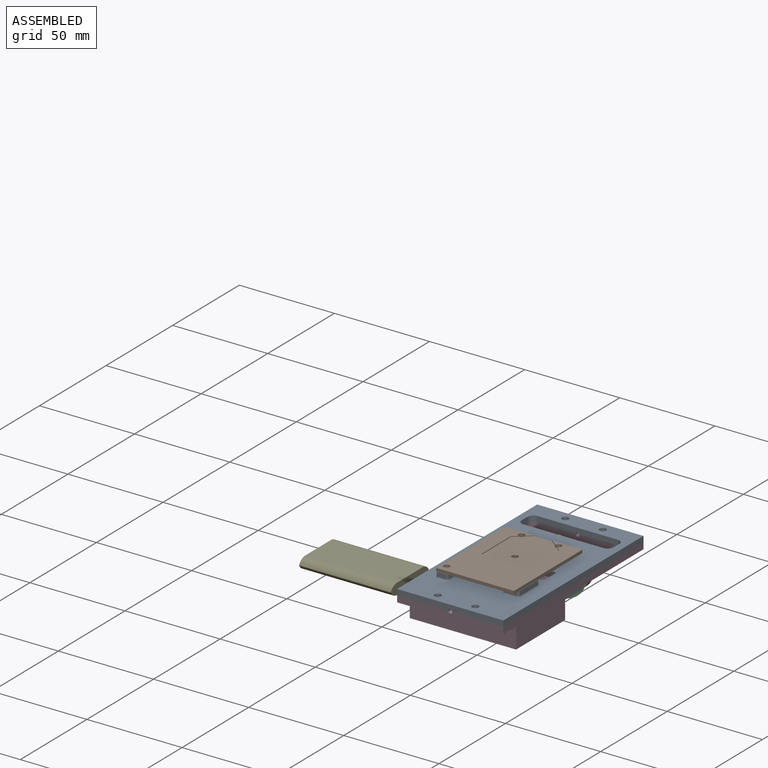
[diagram: assembled view]
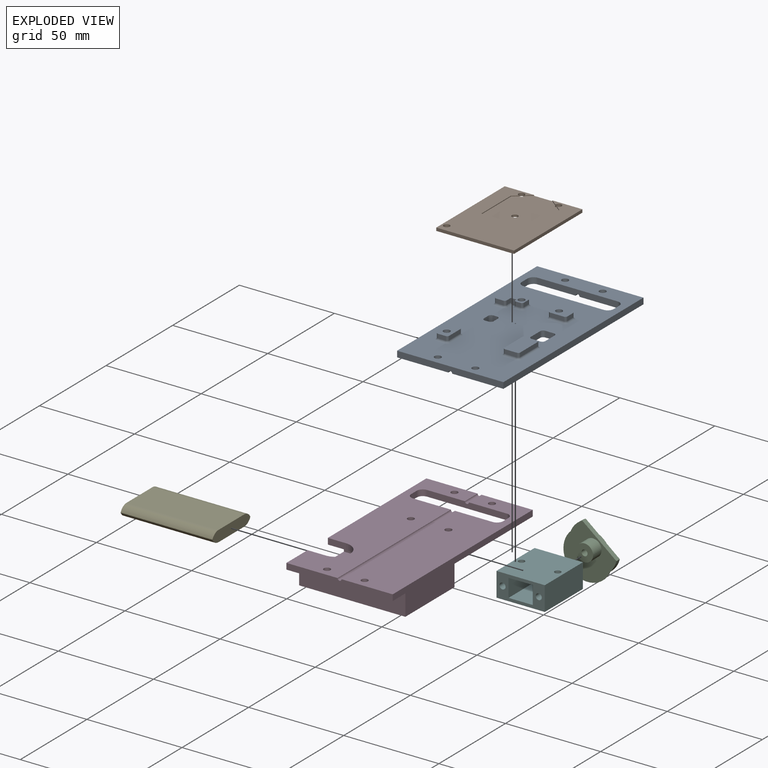
[diagram: exploded view]
GUIDED TOUR — MATED ASSEMBLY (Onshape document 56e84d0ae4b04bbcf82c88f1, AutoMate assembly 56e84d0ae4b04bbcf82c88f1_4766b9ff9a62481ba46b3844_0bbf40eec02bc8a15be4df6e_default)

This assembly has 6 components, labeled P0..P5 below (a component is one placed occurrence of a part; the same part can appear more than once), held together by 6 mates. A mate is a constraint between two components; its type names the relative motion it leaves free:
  CYLINDRICAL — leaves both rotation about and translation along the listed axis free,
  PLANAR — leaves sliding in the plane through the listed point (normal = the listed direction) and rotation about that normal free.
Axis/direction vectors are unit vectors and 'through' points are millimeter coordinates, both in the assembly's world frame.

MATES
  1. CYLINDRICAL "Cylindrical 2": P3 <-> P5, axis (0.000, 0.000, -1.000) through (-40.65, -29.87, 24.01) mm
  2. CYLINDRICAL "Cylindrical 5": P0 <-> P1, axis (0.000, 0.000, -1.000) through (-40.65, -29.87, 30.36) mm
  3. PLANAR "Planar 6": P2 <-> P5, direction (0.000, -1.000, 0.000) through (-31.14, -15.58, 16.19) mm
  4. PLANAR "Planar 1": P0 <-> P3, direction (0.000, 0.000, -1.000) through (-40.65, -29.87, 27.18) mm
  5. CYLINDRICAL "Cylindrical 7": P5 <-> P2, axis (0.000, -1.000, 0.000) through (-31.14, -16.37, 16.19) mm
  6. CYLINDRICAL "Cylindrical 1": P3 <-> P0, axis (0.000, 0.000, -1.000) through (-20.91, -29.87, 24.01) mm

ASSEMBLY ORDER
  1. P5 — the base component [order verified]
  2. P2 [order verified]
  3. P3 [order verified]
  4. P0 [order verified]
  5. P4 [order verified]
  6. P1 [order verified]
Order-tag legend:
  [order verified] — this step's position reverses a verified removal order: the component was checked to insert without passing through the ones already placed.

Of the 6 components, 5 carry the full construction recipe — the FeatureScript program that regenerates the part's solid from scratch; the rest are supplied as boundary geometry only.
Each toured component is shown spotlighted twice — in the assembled view, then in the exploded view, where a leader line traces a displaced component back to its assembled socket (saturated green if recipe-attached, orange if geometry-only; every other component desaturated gray) — followed by its recipe or geometry summary and the mates that hold it.
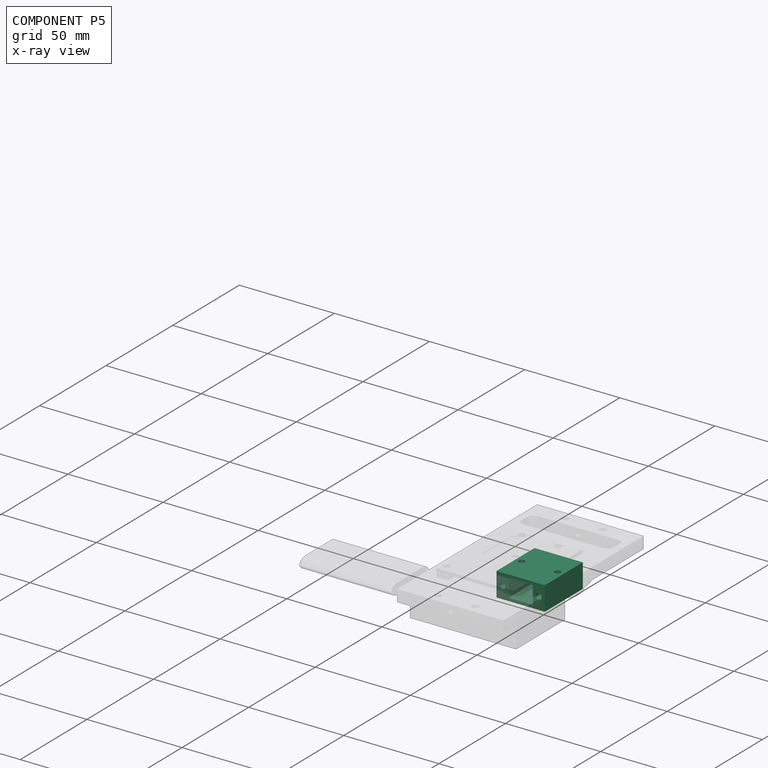
[diagram: component P5 — x-ray view]
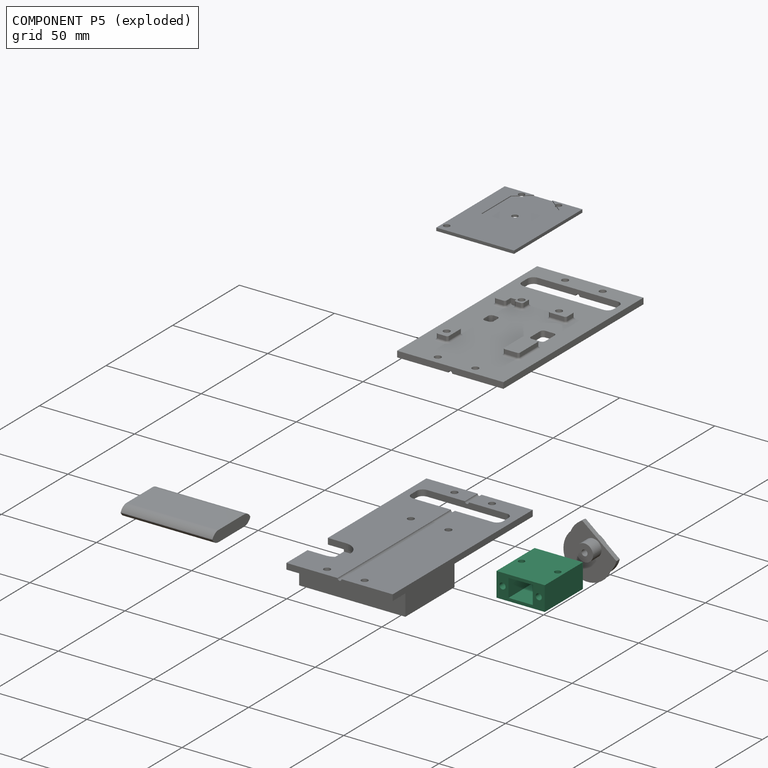
[diagram: component P5 — exploded]
COMPONENT P5 — recipe-attached (CADFS 00110618, mesh-verified: the recipe's output STEP matches this component's geometry to below the mesh-comparison resolution (tessellation chordal tolerance ~0.0604 mm)).
Held by: CYLINDRICAL mate "Cylindrical 2" to P3; PLANAR mate "Planar 6" to P2; CYLINDRICAL mate "Cylindrical 7" to P2.
Construction recipe (FeatureScript — the CAD program that rebuilds this solid; sketch coordinates are in the units given by the * unit suffixes, e.g. mm):

FeatureScript 1511;
import(path : "onshape/std/geometry.fs", version : "1511.0");
import(path : "onshape/std/common.fs", version : "1511.0");
const mm = millimeter;
const VERTEX = EntityType.VERTEX;
const EDGE = EntityType.EDGE;
const FACE = EntityType.FACE;
const BODY = EntityType.BODY;
function v(x, y){return vector(x, y);}
function OD(order){return orderDisambiguation(order);}
function OSD(set){return originalSetDisambiguation(set);}
function TD(topology){return topologyDisambiguation(topology);}
function TDD(query){return trueDependencyDisambiguation(query);}
function sQuery(a, b, c) {return sketchEntityQuery(a, b, c);}

annotation { "Feature Type Name" : "Feature", "Feature Type Description" : "" }
export const myFeature = defineFeature(function(context is Context, id is Id, definition is map)
    precondition{}
    {
        {
            var Q0;
            Q0=qCreatedBy(makeId("Top.planeOp"),FACE);
            var sketch = newSketch(context, id + "F0", { "sketchPlane" : qUnion([Q0])});
            skLineSegment(sketch, "E0.rect.bottom", {"start": v(12.7, 14.29) * mm, "end": v(-12.7, 14.29) * mm});
            skLineSegment(sketch, "E0.rect.top", {"start": v(12.7, -14.29) * mm, "end": v(-12.7, -14.29) * mm});
            skLineSegment(sketch, "E0.rect.left", {"start": v(12.7, 14.29) * mm, "end": v(12.7, -14.29) * mm});
            skLineSegment(sketch, "E0.rect.right", {"start": v(-12.7, 14.29) * mm, "end": v(-12.7, -14.29) * mm});
            skPoint(sketch, "E0.rect.middle", {"position": v(0, 0) * mm});
            skCircle(sketch, "E1", {"center": v(-9.51, 0) * mm, "radius": 1.59 * mm});
            skCircle(sketch, "E2", {"center": v(9.51, 0) * mm, "radius": 1.59 * mm});
            skSolve(sketch);
        }
        {
            var Q0;
            Q0=qSketchRegion(id+"F0",true);
            extrude(context, id + "F1", {"entities" : qUnion([Q0]), "depth" : 12.7 * mm});
        }
        {
            var Q0;
            Q0=makeQuery(id+"F1.opExtrude","SWEPT_FACE",FACE,{"disambiguationData":[OSD([sQuery(id+"F0.wireOp",EDGE,"E0.rect.bottom")])]});
            var sketch = newSketch(context, id + "F2", { "sketchPlane" : qUnion([Q0])});
            skLineSegment(sketch, "E3.rect.bottom", {"start": v(6.35, 11.1) * mm, "end": v(-6.35, 11.1) * mm});
            skLineSegment(sketch, "E3.rect.top", {"start": v(6.35, 1.6) * mm, "end": v(-6.35, 1.6) * mm});
            skLineSegment(sketch, "E3.rect.left", {"start": v(6.35, 11.1) * mm, "end": v(6.35, 1.6) * mm});
            skLineSegment(sketch, "E3.rect.right", {"start": v(-6.35, 11.1) * mm, "end": v(-6.35, 1.6) * mm});
            skPoint(sketch, "E3.rect.middle", {"position": v(0, 6.35) * mm});
            skSolve(sketch);
        }
        {
            var Q0;
            Q0=qSketchRegion(id+"F2",true);
            extrude(context, id + "F3", {"entities" : qUnion([Q0]), "operationType" : NewBodyOperationType.REMOVE, "oppositeDirection" : true, "depth" : 27 * mm});
        }
        {
            var Q0;
            Q0=makeQuery(id+"F3.boolean.opBoolean","COPY",FACE,{"derivedFrom":makeQuery(id+"F3.opExtrude","CAP_FACE",FACE,{"disambiguationData":[OSD([sQuery(id+"F2.wireOp",EDGE,"E3.rect.bottom"),sQuery(id+"F2.wireOp",EDGE,"E3.rect.top"),sQuery(id+"F2.wireOp",EDGE,"E3.rect.left"),sQuery(id+"F2.wireOp",EDGE,"E3.rect.right")])],"isStart":false})});
            var sketch = newSketch(context, id + "F4", { "sketchPlane" : qUnion([Q0])});
            skCircle(sketch, "E4", {"center": v(0, 6.35) * mm, "radius": 2.38 * mm});
            skPoint(sketch, "E5", {"position": v(6.35, 6.35) * mm});
            skSolve(sketch);
        }
        {
            var Q0;
            Q0=qSketchRegion(id+"F4",true);
            extrude(context, id + "F5", {"entities" : qUnion([Q0]), "operationType" : NewBodyOperationType.REMOVE, "endBound" : BoundingType.THROUGH_ALL, "oppositeDirection" : true, "depth" : 25.4 * mm});
        }
        {
            var Q0;
            Q0=makeQuery(id+"F1.opExtrude","SWEPT_FACE",FACE,{"disambiguationData":[OSD([sQuery(id+"F0.wireOp",EDGE,"E0.rect.top")])]});
            var sketch = newSketch(context, id + "F6", { "sketchPlane" : qUnion([Q0])});
            skPoint(sketch, "E6", {"position": v(0, 6.35) * mm});
            skCircle(sketch, "E7", {"center": v(-9.51, 6.35) * mm, "radius": 1.59 * mm});
            skCircle(sketch, "E8", {"center": v(9.51, 6.35) * mm, "radius": 1.59 * mm});
            skSolve(sketch);
        }
        {
            var Q0;
            Q0=qSketchRegion(id+"F6",true);
            extrude(context, id + "F7", {"entities" : qUnion([Q0]), "operationType" : NewBodyOperationType.REMOVE, "oppositeDirection" : true, "depth" : 11.43 * mm});
        }
        {
            var Q0;
            Q0=makeQuery(id+"F1.opExtrude","SWEPT_FACE",FACE,{"disambiguationData":[OSD([sQuery(id+"F0.wireOp",EDGE,"E0.rect.bottom")])]});
            var sketch = newSketch(context, id + "F8", { "sketchPlane" : qUnion([Q0])});
            skCircle(sketch, "E9", {"center": v(-9.51, 6.35) * mm, "radius": 1.59 * mm});
            skPoint(sketch, "E9.centerSnap0", {"position": v(-6.35, 6.35) * mm});
            skCircle(sketch, "E10", {"center": v(9.51, 6.35) * mm, "radius": 1.59 * mm});
            skPoint(sketch, "E10.centerSnap0", {"position": v(6.35, 6.35) * mm});
            skSolve(sketch);
        }
        {
            var Q0;
            Q0=qSketchRegion(id+"F8",true);
            extrude(context, id + "F9", {"entities" : qUnion([Q0]), "operationType" : NewBodyOperationType.REMOVE, "oppositeDirection" : true, "depth" : 11.43 * mm});
        }
    });
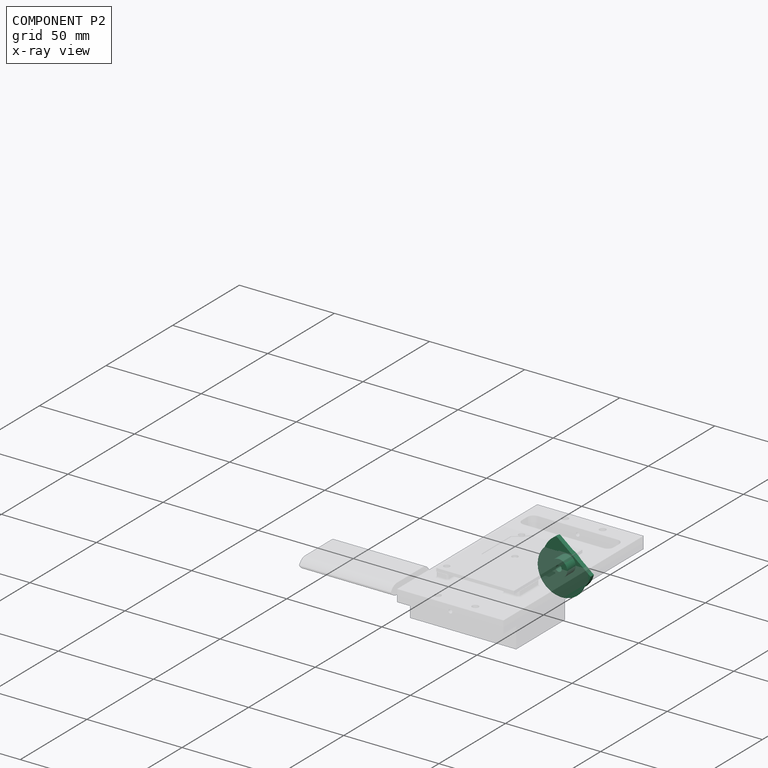
[diagram: component P2 — x-ray view]
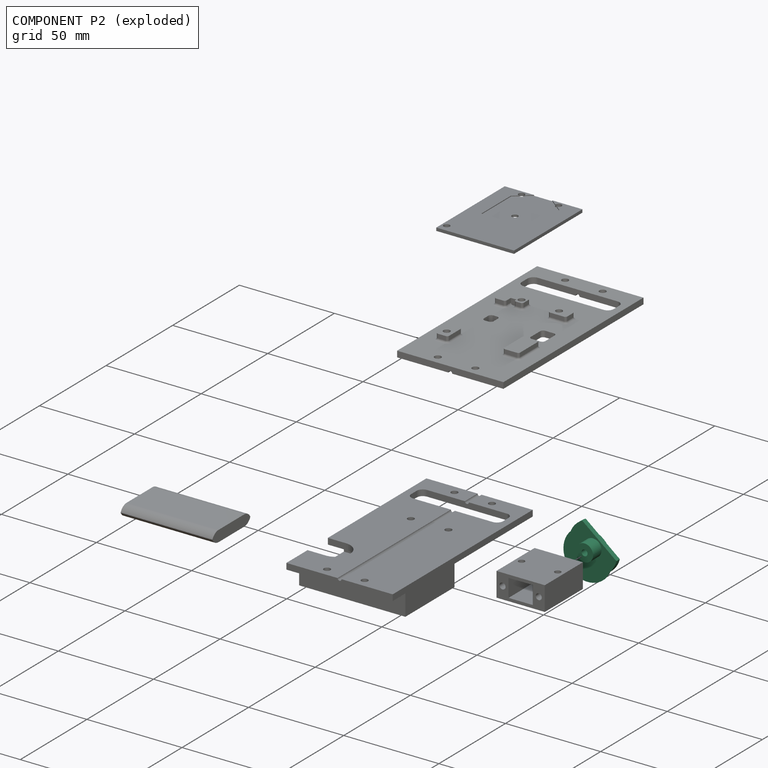
[diagram: component P2 — exploded]
COMPONENT P2 — recipe-attached (CADFS 00110620, mesh-verified: the recipe's output STEP matches this component's geometry to below the mesh-comparison resolution (tessellation chordal tolerance ~0.0646 mm)).
Held by: PLANAR mate "Planar 6" to P5; CYLINDRICAL mate "Cylindrical 7" to P5.
Construction recipe (FeatureScript — the CAD program that rebuilds this solid; sketch coordinates are in the units given by the * unit suffixes, e.g. mm):

FeatureScript 1511;
import(path : "onshape/std/geometry.fs", version : "1511.0");
import(path : "onshape/std/common.fs", version : "1511.0");
const mm = millimeter;
const VERTEX = EntityType.VERTEX;
const EDGE = EntityType.EDGE;
const FACE = EntityType.FACE;
const BODY = EntityType.BODY;
function v(x, y){return vector(x, y);}
function OD(order){return orderDisambiguation(order);}
function OSD(set){return originalSetDisambiguation(set);}
function TD(topology){return topologyDisambiguation(topology);}
function TDD(query){return trueDependencyDisambiguation(query);}
function sQuery(a, b, c) {return sketchEntityQuery(a, b, c);}

annotation { "Feature Type Name" : "Feature", "Feature Type Description" : "" }
export const myFeature = defineFeature(function(context is Context, id is Id, definition is map)
    precondition{}
    {
        {
            var Q0;
            Q0=qCreatedBy(makeId("Top.planeOp"),FACE);
            var sketch = newSketch(context, id + "F0", { "sketchPlane" : qUnion([Q0])});
            skCircle(sketch, "E0", {"center": v(0, 0) * mm, "radius": 4.5 * mm});
            skCircle(sketch, "E1", {"center": v(0, 0) * mm, "radius": 1.59 * mm});
            skSolve(sketch);
        }
        {
            var Q0;
            Q0=qSketchRegion(id+"F0",true);
            extrude(context, id + "F1", {"entities" : qUnion([Q0]), "depth" : 6.35 * mm});
        }
        {
            var Q0;
            Q0=makeQuery(id+"F1.opExtrude","CAP_FACE",FACE,{"disambiguationData":[OSD([sQuery(id+"F0.wireOp",EDGE,"E0")])],"isStart":false});
            var sketch = newSketch(context, id + "F2", { "sketchPlane" : qUnion([Q0])});
            skCircle(sketch, "E2", {"center": v(0, 0) * mm, "radius": 12.7 * mm});
            skSolve(sketch);
        }
        {
            var Q0;
            Q0=qSketchRegion(id+"F2",true);
            extrude(context, id + "F3", {"entities" : qUnion([Q0]), "operationType" : NewBodyOperationType.ADD, "depth" : 2.54 * mm});
        }
        {
            var Q0;
            {var subQ0=sQuery(id+"F2.wireOp",EDGE,"E2");Q0=makeQuery(id+"F3.boolean.opBoolean","SPLIT",FACE,{"disambiguationData":[TD([makeQuery(id+"F1.opExtrude","SWEPT_FACE",FACE,{"disambiguationData":[OSD([sQuery(id+"F0.wireOp",EDGE,"E0")])]})])],"derivedFrom":makeQuery(id+"F3.opExtrude","CAP_FACE",FACE,{"disambiguationData":[OSD([subQ0])],"isStart":true})});}
            var sketch = newSketch(context, id + "F4", { "sketchPlane" : qUnion([Q0])});
            skLineSegment(sketch, "E3", {"start": v(19.32, 15.43) * mm, "end": v(-10.04, -20.93) * mm});
            skLineSegment(sketch, "E4", {"start": v(-10.04, -20.93) * mm, "end": v(21.4, -20.93) * mm});
            skLineSegment(sketch, "E5", {"start": v(21.4, -20.93) * mm, "end": v(19.32, 15.43) * mm});
            skSolve(sketch);
        }
        {
            var Q0;
            Q0=qSketchRegion(id+"F4",true);
            extrude(context, id + "F5", {"entities" : qUnion([Q0]), "operationType" : NewBodyOperationType.REMOVE, "endBound" : BoundingType.THROUGH_ALL, "oppositeDirection" : true, "depth" : 25.4 * mm});
        }
        {
            var Q0;
            Q0=makeQuery(id+"F3.opExtrude","CAP_FACE",FACE,{"disambiguationData":[OSD([sQuery(id+"F2.wireOp",EDGE,"E2")])],"isStart":false});
            var sketch = newSketch(context, id + "F6", { "sketchPlane" : qUnion([Q0])});
            skCircle(sketch, "E6", {"center": v(-5.73, -4.63) * mm, "radius": 12.7 * mm});
            skLineSegment(sketch, "E7", {"start": v(0, 0) * mm, "end": v(-40.87, -33) * mm, "construction": true});
            skSolve(sketch);
        }
        {
            var Q0;
            Q0=qSketchRegion(id+"F6",true);
            extrude(context, id + "F7", {"entities" : qUnion([Q0]), "operationType" : NewBodyOperationType.ADD, "depth" : 0.36 * mm});
        }
    });
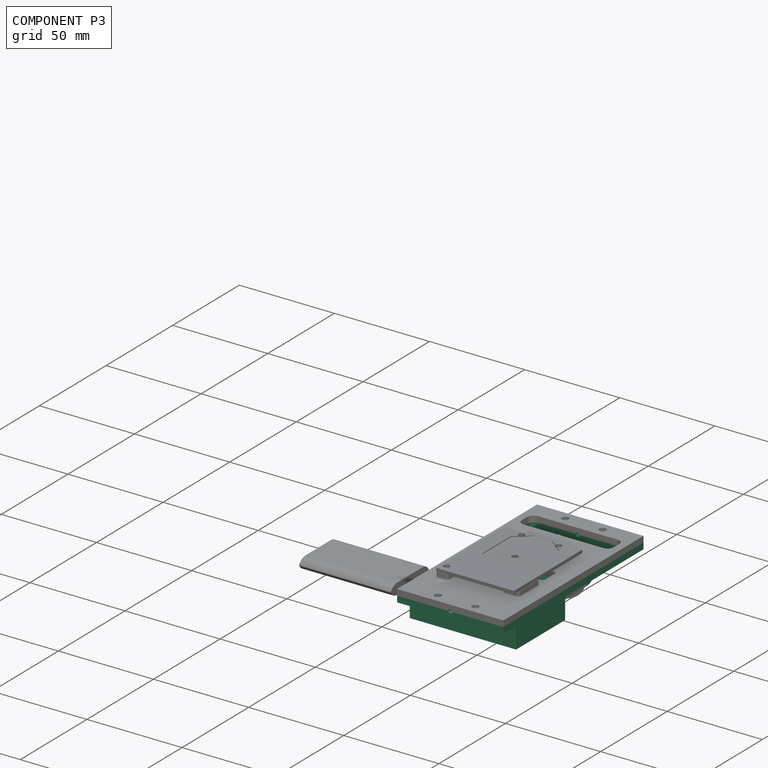
[diagram: component P3 — assembled]
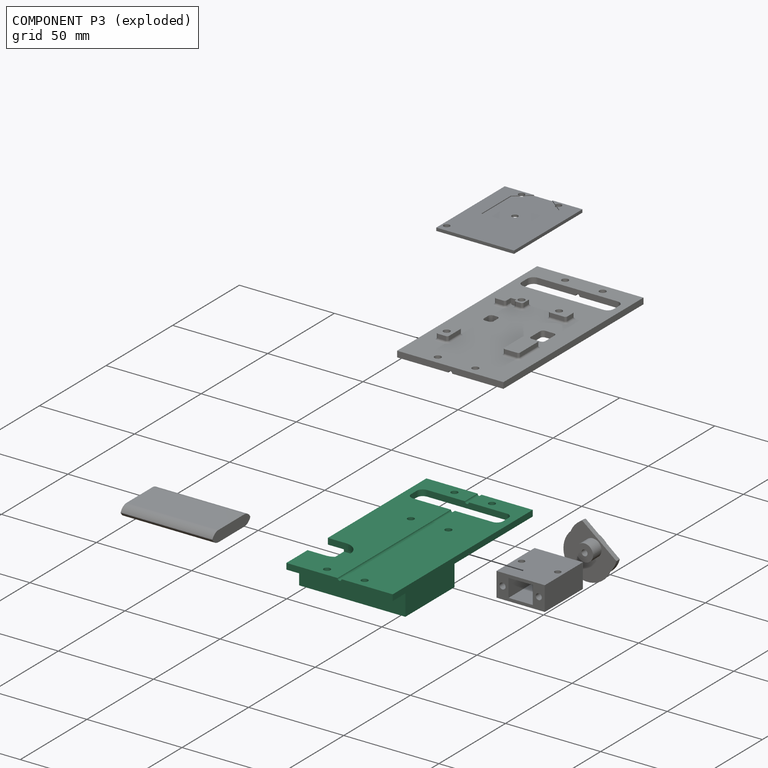
[diagram: component P3 — exploded]
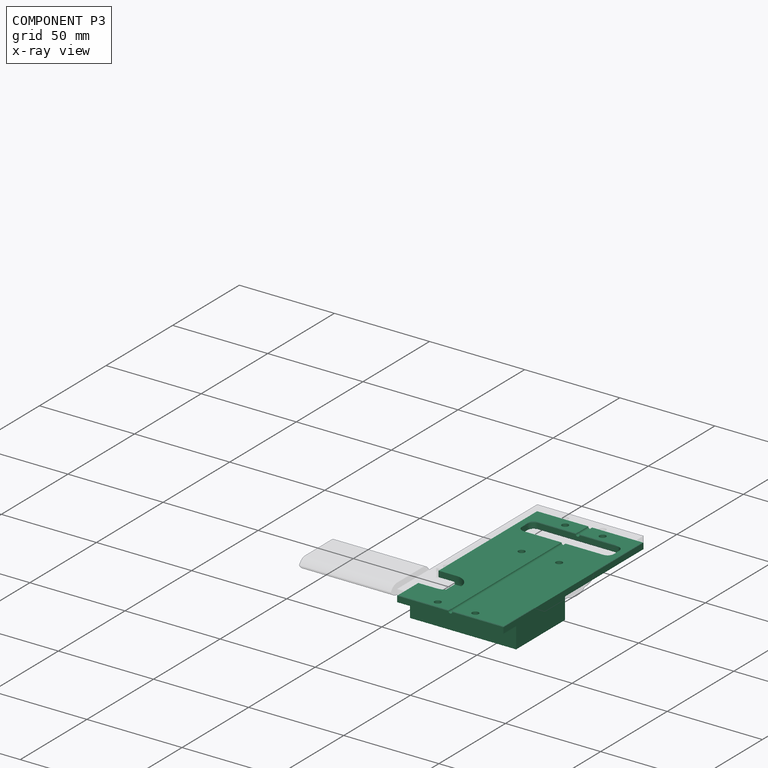
[diagram: component P3 — x-ray view]
COMPONENT P3 — recipe-attached (CADFS 00110623, mesh-verified: the recipe's output STEP matches this component's geometry to below the mesh-comparison resolution (tessellation chordal tolerance ~0.18 mm)).
Held by: CYLINDRICAL mate "Cylindrical 2" to P5; PLANAR mate "Planar 1" to P0; CYLINDRICAL mate "Cylindrical 1" to P0.
Construction recipe (FeatureScript — the CAD program that rebuilds this solid; sketch coordinates are in the units given by the * unit suffixes, e.g. mm):

FeatureScript 1511;
import(path : "onshape/std/geometry.fs", version : "1511.0");
import(path : "onshape/std/common.fs", version : "1511.0");
const mm = millimeter;
const VERTEX = EntityType.VERTEX;
const EDGE = EntityType.EDGE;
const FACE = EntityType.FACE;
const BODY = EntityType.BODY;
function v(x, y){return vector(x, y);}
function OD(order){return orderDisambiguation(order);}
function OSD(set){return originalSetDisambiguation(set);}
function TD(topology){return topologyDisambiguation(topology);}
function TDD(query){return trueDependencyDisambiguation(query);}
function sQuery(a, b, c) {return sketchEntityQuery(a, b, c);}

annotation { "Feature Type Name" : "Feature", "Feature Type Description" : "" }
export const myFeature = defineFeature(function(context is Context, id is Id, definition is map)
    precondition{}
    {
        {
            var Q0;
            Q0=qCreatedBy(makeId("Top.planeOp"),FACE);
            var sketch = newSketch(context, id + "F0", { "sketchPlane" : qUnion([Q0])});
            skLineSegment(sketch, "E0.rect.top", {"start": v(27.94, 0) * mm, "end": v(-27.94, 0) * mm});
            skLineSegment(sketch, "E0.rect.left", {"start": v(27.94, 72.4) * mm, "end": v(27.94, 0) * mm});
            skLineSegment(sketch, "E0.rect.right", {"start": v(-27.94, 72.4) * mm, "end": v(-27.94, 0) * mm});
            skPoint(sketch, "E0.rect.middle", {"position": v(0, 0) * mm});
            skCircle(sketch, "E1", {"center": v(-9.87, 58.09) * mm, "radius": 1.71 * mm});
            skCircle(sketch, "E2", {"center": v(9.87, 58.09) * mm, "radius": 1.71 * mm});
            skLineSegment(sketch, "E3", {"start": v(-12.7, 72.4) * mm, "end": v(12.7, 72.4) * mm, "construction": true});
            skPoint(sketch, "E4", {"position": v(0, 72.4) * mm});
            skLineSegment(sketch, "E5.rect.bottom", {"start": v(24.13, 86.06) * mm, "end": v(-24.13, 86.06) * mm});
            skLineSegment(sketch, "E5.rect.top", {"start": v(24.13, 75.57) * mm, "end": v(-24.13, 75.57) * mm});
            skLineSegment(sketch, "E5.rect.left", {"start": v(24.13, 86.06) * mm, "end": v(24.13, 75.57) * mm});
            skLineSegment(sketch, "E5.rect.right", {"start": v(-24.13, 86.06) * mm, "end": v(-24.13, 75.57) * mm});
            skPoint(sketch, "E5.rect.middle", {"position": v(0, 80.81) * mm});
            skLineSegment(sketch, "E6", {"start": v(-27.94, 72.4) * mm, "end": v(-27.94, 72.4) * mm});
            skLineSegment(sketch, "E7", {"start": v(-27.94, 72.4) * mm, "end": v(-27.94, 95.58) * mm});
            skLineSegment(sketch, "E8", {"start": v(-27.94, 95.58) * mm, "end": v(27.94, 95.58) * mm});
            skLineSegment(sketch, "E9", {"start": v(27.94, 95.58) * mm, "end": v(27.94, 72.4) * mm});
            skLineSegment(sketch, "E10", {"start": v(27.94, 72.4) * mm, "end": v(27.94, 72.4) * mm});
            skPoint(sketch, "E11", {"position": v(0, 95.58) * mm});
            skCircle(sketch, "E12", {"center": v(-9.87, 90.82) * mm, "radius": 1.71 * mm});
            skCircle(sketch, "E13", {"center": v(9.87, 90.82) * mm, "radius": 1.71 * mm});
            skLineSegment(sketch, "E14", {"start": v(0, 86.06) * mm, "end": v(0, 95.58) * mm, "construction": true});
            skPoint(sketch, "E15", {"position": v(0, 90.82) * mm});
            skLineSegment(sketch, "E16", {"start": v(-9.87, 58.09) * mm, "end": v(9.87, 58.09) * mm, "construction": true});
            skPoint(sketch, "E17", {"position": v(0, 58.09) * mm});
            skSolve(sketch);
        }
        {
            var Q0;
            Q0=qSketchRegion(id+"F0",true);
            extrude(context, id + "F1", {"entities" : qUnion([Q0]), "depth" : 3.17 * mm});
        }
        {
            var Q0;
            Q0=makeQuery(id+"F1.opExtrude","CAP_FACE",FACE,{"disambiguationData":[OSD([sQuery(id+"F0.wireOp",EDGE,"E0.rect.bottom"),sQuery(id+"F0.wireOp",EDGE,"E0.rect.top"),sQuery(id+"F0.wireOp",EDGE,"E0.rect.left"),sQuery(id+"F0.wireOp",EDGE,"E0.rect.right")])],"isStart":true});
            var sketch = newSketch(context, id + "F2", { "sketchPlane" : qUnion([Q0])});
            skLineSegment(sketch, "E18.bottom", {"start": v(-27.94, 0) * mm, "end": v(27.94, 0) * mm});
            skLineSegment(sketch, "E18.top", {"start": v(-27.94, -36.83) * mm, "end": v(27.94, -36.83) * mm});
            skLineSegment(sketch, "E18.left", {"start": v(-27.94, 0) * mm, "end": v(-27.94, -36.83) * mm});
            skLineSegment(sketch, "E18.right", {"start": v(27.94, 0) * mm, "end": v(27.94, -36.83) * mm});
            skPoint(sketch, "E19", {"position": v(0, 0) * mm});
            skSolve(sketch);
        }
        {
            var Q0;
            Q0=qSketchRegion(id+"F2",true);
            extrude(context, id + "F3", {"entities" : qUnion([Q0]), "operationType" : NewBodyOperationType.ADD, "depth" : 11.13 * mm});
        }
        {
            var Q0;
            Q0=makeQuery(id+"F3.opExtrude","CAP_FACE",FACE,{"disambiguationData":[OSD([sQuery(id+"F2.wireOp",EDGE,"E18.bottom"),sQuery(id+"F2.wireOp",EDGE,"E18.top"),sQuery(id+"F2.wireOp",EDGE,"E18.left"),sQuery(id+"F2.wireOp",EDGE,"E18.right")])],"isStart":false});
            var sketch = newSketch(context, id + "F4", { "sketchPlane" : qUnion([Q0])});
            skLineSegment(sketch, "E20", {"start": v(-27.94, -21.59) * mm, "end": v(-27.94, -6.35) * mm});
            skLineSegment(sketch, "E21", {"start": v(-27.94, -6.35) * mm, "end": v(-18.42, -6.35) * mm});
            skLineSegment(sketch, "E22", {"start": v(-27.94, -21.59) * mm, "end": v(-18.42, -21.59) * mm});
            skArc(sketch, "E23", {"start": v(-18.42, -21.59) * mm, "mid": v(-10.8, -13.97) * mm, "end": v(-18.42, -6.35) * mm});
            skSolve(sketch);
        }
        {
            var Q0;
            Q0=qSketchRegion(id+"F4",true);
            extrude(context, id + "F5", {"entities" : qUnion([Q0]), "operationType" : NewBodyOperationType.REMOVE, "endBound" : BoundingType.THROUGH_ALL, "oppositeDirection" : true, "depth" : 25.4 * mm});
        }
        {
            var Q0;
            Q0=makeQuery(id+"F3.boolean.opBoolean","MERGE",FACE,{"derivedFrom":[makeQuery(id+"F1.opExtrude","SWEPT_FACE",FACE,{"disambiguationData":[OSD([sQuery(id+"F0.wireOp",EDGE,"E0.rect.top")])]}),makeQuery(id+"F3.opExtrude","SWEPT_FACE",FACE,{"disambiguationData":[OSD([sQuery(id+"F2.wireOp",EDGE,"E18.bottom")])]})]});
            var sketch = newSketch(context, id + "F6", { "sketchPlane" : qUnion([Q0])});
            skLineSegment(sketch, "E24.bottom", {"start": v(-27.94, 3.18) * mm, "end": v(27.94, 3.18) * mm});
            skLineSegment(sketch, "E24.top", {"start": v(-27.94, 0) * mm, "end": v(27.94, 0) * mm});
            skLineSegment(sketch, "E24.left", {"start": v(-27.94, 3.18) * mm, "end": v(-27.94, 0) * mm});
            skLineSegment(sketch, "E24.right", {"start": v(27.94, 3.18) * mm, "end": v(27.94, 0) * mm});
            skSolve(sketch);
        }
        {
            var Q0;
            Q0 = qSketchRegion(id + "F6", true);
            extrude(context, id + "F7", {"entities" : qUnion([Q0]), "operationType" : NewBodyOperationType.ADD, "depth" : 9.52 * mm});
        }
        {
            var Q0;
            Q0=makeQuery(id+"F1.opExtrude","SWEPT_FACE",FACE,{"disambiguationData":[OSD([sQuery(id+"F0.wireOp",EDGE,"E8")])]});
            var sketch = newSketch(context, id + "F8", { "sketchPlane" : qUnion([Q0])});
            skCircle(sketch, "E25", {"center": v(0, 3.18) * mm, "radius": 1.02 * mm});
            skSolve(sketch);
        }
        {
            var Q0;
            Q0=qSketchRegion(id+"F8",true);
            extrude(context, id + "F9", {"entities" : qUnion([Q0]), "operationType" : NewBodyOperationType.REMOVE, "endBound" : BoundingType.THROUGH_ALL, "oppositeDirection" : true, "depth" : 25.4 * mm});
        }
        {
            var Q0;
            {var subQ0=sQuery(id+"F0.wireOp",EDGE,"E8");var subQ4=sQuery(id+"F0.wireOp",EDGE,"E7");var subQ11=sQuery(id+"F0.wireOp",EDGE,"E0.rect.right");var subQ14=sQuery(id+"F2.wireOp",EDGE,"E18.left");Q0=makeQuery(id+"F5.boolean.opBoolean","SPLIT",FACE,{"disambiguationData":[TD([makeQuery(id+"F1.opExtrude","SWEPT_FACE",FACE,{"disambiguationData":[OSD([subQ0])]})])],"derivedFrom":makeQuery(id+"F3.boolean.opBoolean","MERGE",FACE,{"derivedFrom":[makeQuery(id+"F1.opExtrude","SWEPT_FACE",FACE,{"disambiguationData":[OSD([subQ11,subQ4])]}),makeQuery(id+"F3.opExtrude","SWEPT_FACE",FACE,{"disambiguationData":[OSD([subQ14])]})]})});}
            var sketch = newSketch(context, id + "F10", { "sketchPlane" : qUnion([Q0])});
            skLineSegment(sketch, "E26.bottom", {"start": v(-33.66, 0) * mm, "end": v(-3.18, 0) * mm});
            skLineSegment(sketch, "E26.top", {"start": v(-33.66, -7.95) * mm, "end": v(-3.18, -7.95) * mm});
            skLineSegment(sketch, "E26.left", {"start": v(-33.66, 0) * mm, "end": v(-33.66, -7.95) * mm});
            skLineSegment(sketch, "E26.right", {"start": v(-3.18, 0) * mm, "end": v(-3.18, -7.95) * mm});
            skSolve(sketch);
        }
        {
            var Q0;
            Q0=qSketchRegion(id+"F10",true);
            extrude(context, id + "F11", {"entities" : qUnion([Q0]), "operationType" : NewBodyOperationType.REMOVE, "oppositeDirection" : true, "depth" : 52.07 * mm});
        }
        {
            var Q0;
            Q0=makeQuery(id+"F1.opExtrude","SWEPT_EDGE",EDGE,{"disambiguationData":[OSD([sQuery(id+"F0.wireOp",EDGE,"E5.rect.top"),sQuery(id+"F0.wireOp",EDGE,"E5.rect.left")])]});
            var Q1;
            Q1=makeQuery(id+"F1.opExtrude","SWEPT_EDGE",EDGE,{"disambiguationData":[OSD([sQuery(id+"F0.wireOp",EDGE,"E5.rect.top"),sQuery(id+"F0.wireOp",EDGE,"E5.rect.right")])]});
            var Q2;
            Q2=makeQuery(id+"F1.opExtrude","SWEPT_EDGE",EDGE,{"disambiguationData":[OSD([sQuery(id+"F0.wireOp",EDGE,"E5.rect.bottom"),sQuery(id+"F0.wireOp",EDGE,"E5.rect.right")])]});
            var Q3;
            Q3=makeQuery(id+"F1.opExtrude","SWEPT_EDGE",EDGE,{"disambiguationData":[OSD([sQuery(id+"F0.wireOp",EDGE,"E5.rect.bottom"),sQuery(id+"F0.wireOp",EDGE,"E5.rect.left")])]});
            fillet(context, id + "F12", {"entities" : qUnion([Q0, Q1, Q2, Q3]), "radius" : 3.17 * mm, "tangentPropagation" : true, "allowEdgeOverflow" : false});
        }
        {
            var Q0;
            Q0=makeQuery(id+"F7.opExtrude","SWEPT_FACE",FACE,{"disambiguationData":[OSD([sQuery(id+"F6.wireOp",EDGE,"E24.top")])]});
            var sketch = newSketch(context, id + "F13", { "sketchPlane" : qUnion([Q0])});
            skCircle(sketch, "E27", {"center": v(-9.87, 4.76) * mm, "radius": 1.71 * mm});
            skCircle(sketch, "E28", {"center": v(9.87, 4.76) * mm, "radius": 1.71 * mm});
            skCircle(sketch, "E29", {"center": v(-9.87, -58.09) * mm, "radius": 1.71 * mm, "construction": true});
            skCircle(sketch, "E30", {"center": v(9.87, -58.09) * mm, "radius": 1.71 * mm, "construction": true});
            skLineSegment(sketch, "E31", {"start": v(-9.87, 9.52) * mm, "end": v(-9.87, 0) * mm, "construction": true});
            skSolve(sketch);
        }
        {
            var Q0;
            Q0 = qSketchRegion(id + "F13", true);
            extrude(context, id + "F14", {"entities" : qUnion([Q0]), "operationType" : NewBodyOperationType.REMOVE, "oppositeDirection" : true, "depth" : 25.4 * mm});
        }
        {
            var Q0;
            Q0=makeQuery(id+"F3.opExtrude","CAP_FACE",FACE,{"disambiguationData":[OSD([sQuery(id+"F2.wireOp",EDGE,"E18.bottom"),sQuery(id+"F2.wireOp",EDGE,"E18.top"),sQuery(id+"F2.wireOp",EDGE,"E18.left"),sQuery(id+"F2.wireOp",EDGE,"E18.right")])],"isStart":false});
            var sketch = newSketch(context, id + "F15", { "sketchPlane" : qUnion([Q0])});
            skArc(sketch, "E32", {"start": v(6.35, -36.83) * mm, "mid": v(0, -30.48) * mm, "end": v(-6.35, -36.83) * mm});
            skLineSegment(sketch, "E33", {"start": v(-6.35, -36.83) * mm, "end": v(6.35, -36.83) * mm});
            skSolve(sketch);
        }
        {
            var Q0;
            Q0 = qSketchRegion(id + "F15", true);
            extrude(context, id + "F16", {"entities" : qUnion([Q0]), "operationType" : NewBodyOperationType.REMOVE, "oppositeDirection" : true, "depth" : 10.16 * mm});
        }
    });
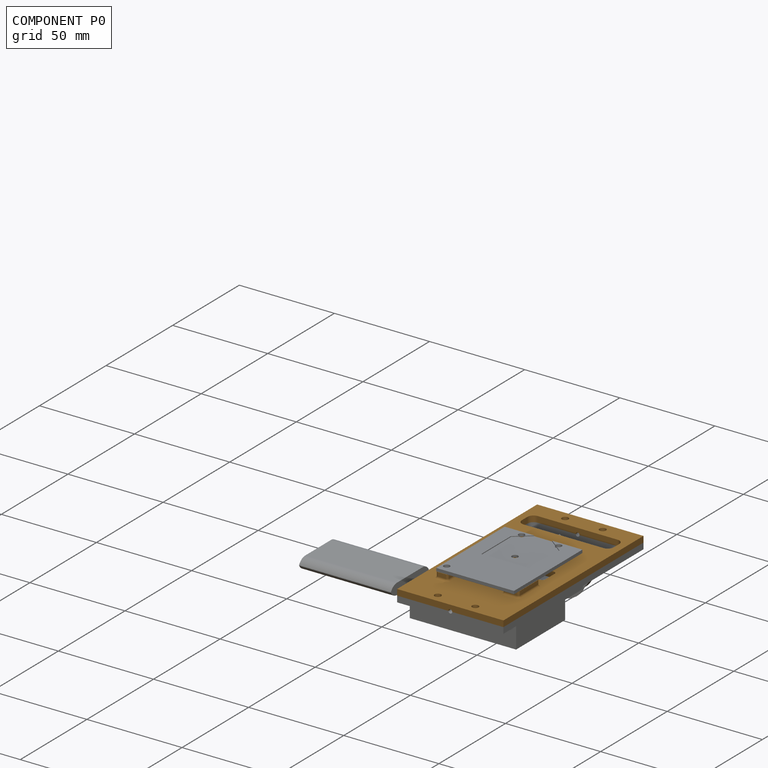
[diagram: component P0 — assembled]
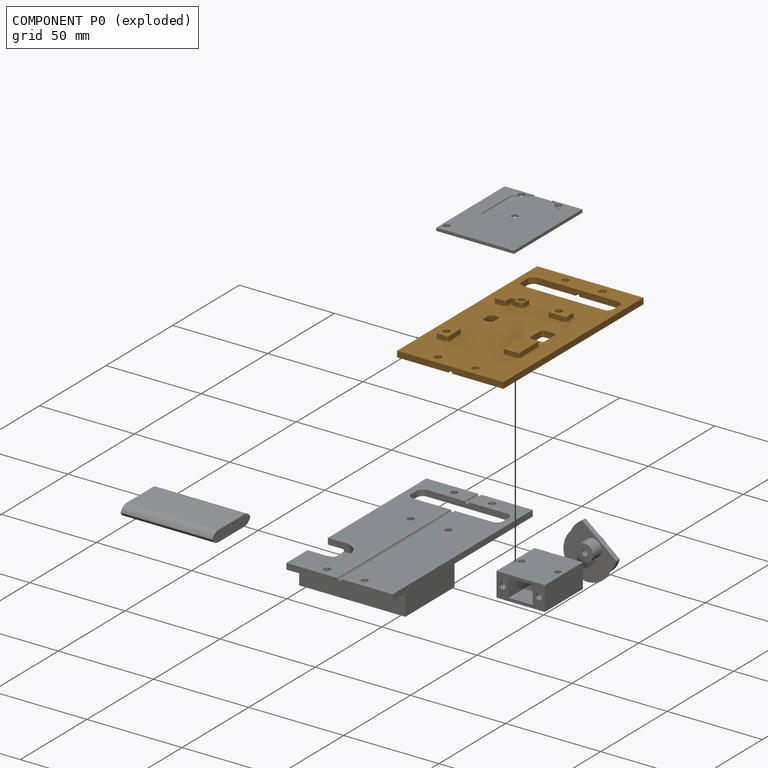
[diagram: component P0 — exploded]
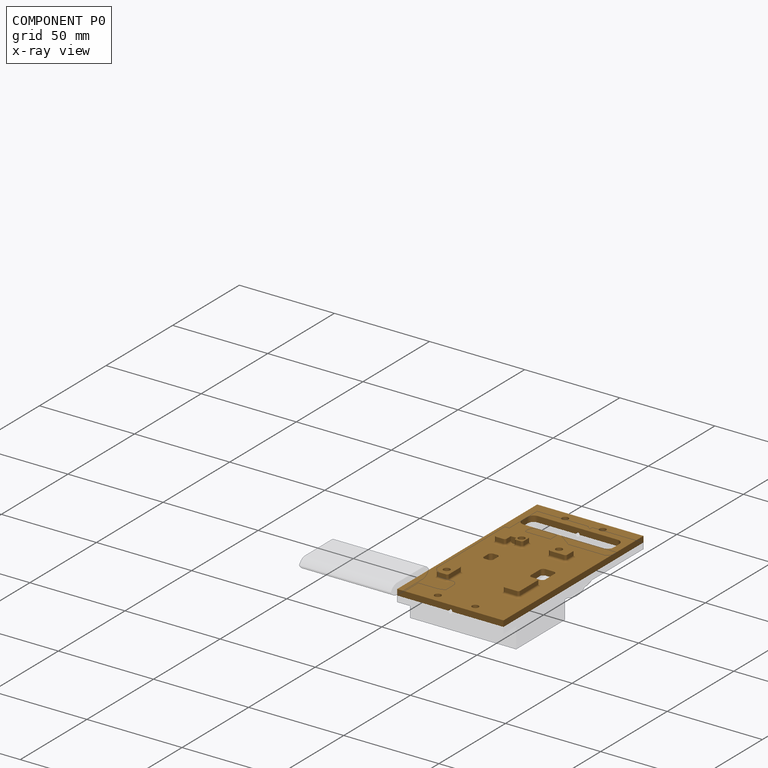
[diagram: component P0 — x-ray view]
COMPONENT P0 — geometry summary (no construction recipe available for this part):
  bounding box: 105.1 x 55.9 x 6.4 mm
  B-rep topology: 1 solid, 119 faces, 612 edges
  volume: 17368 mm^3 (47% of its bounding box)
Held by: CYLINDRICAL mate "Cylindrical 5" to P1; PLANAR mate "Planar 1" to P3; CYLINDRICAL mate "Cylindrical 1" to P3.
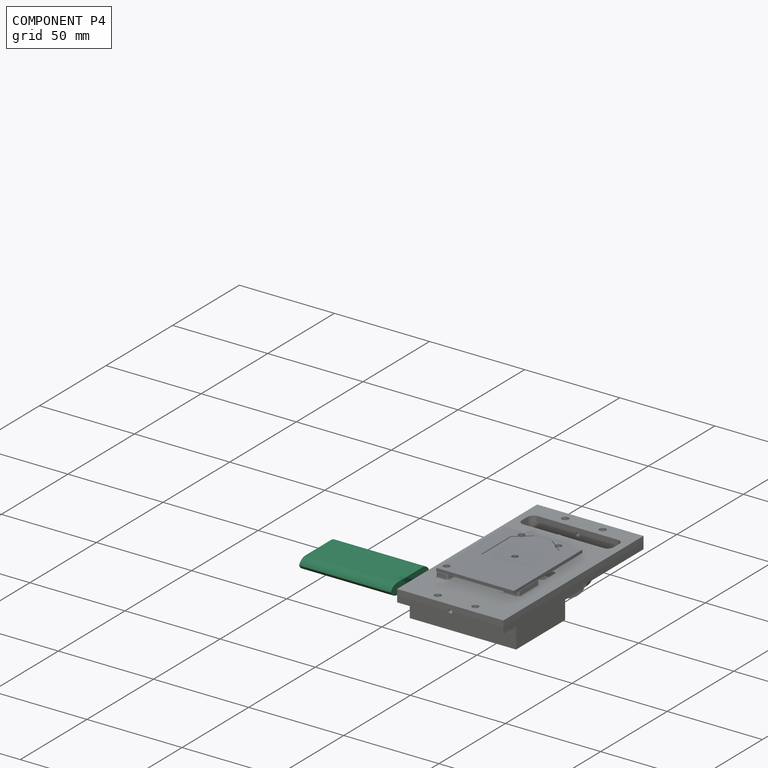
[diagram: component P4 — assembled]
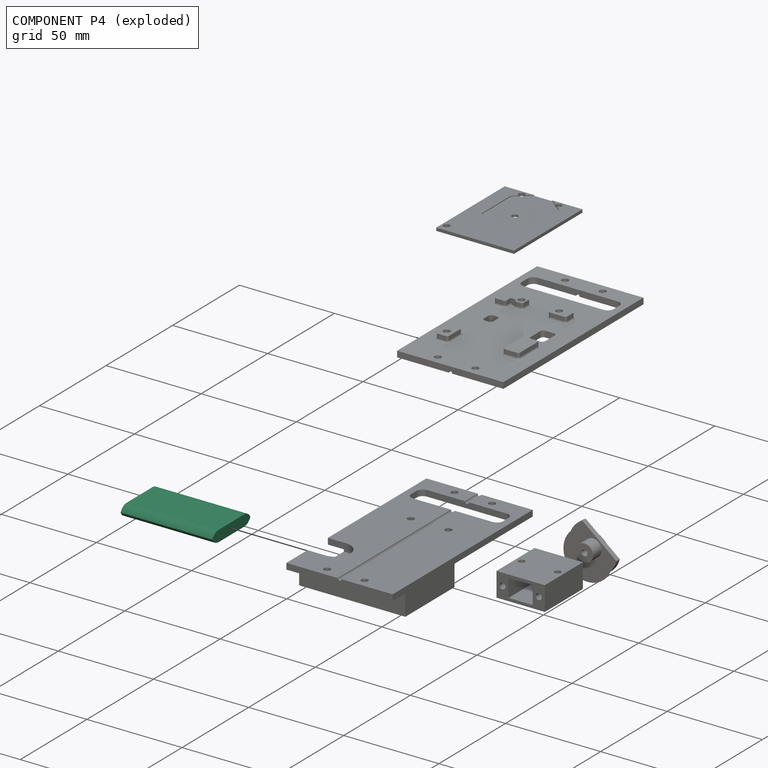
[diagram: component P4 — exploded]
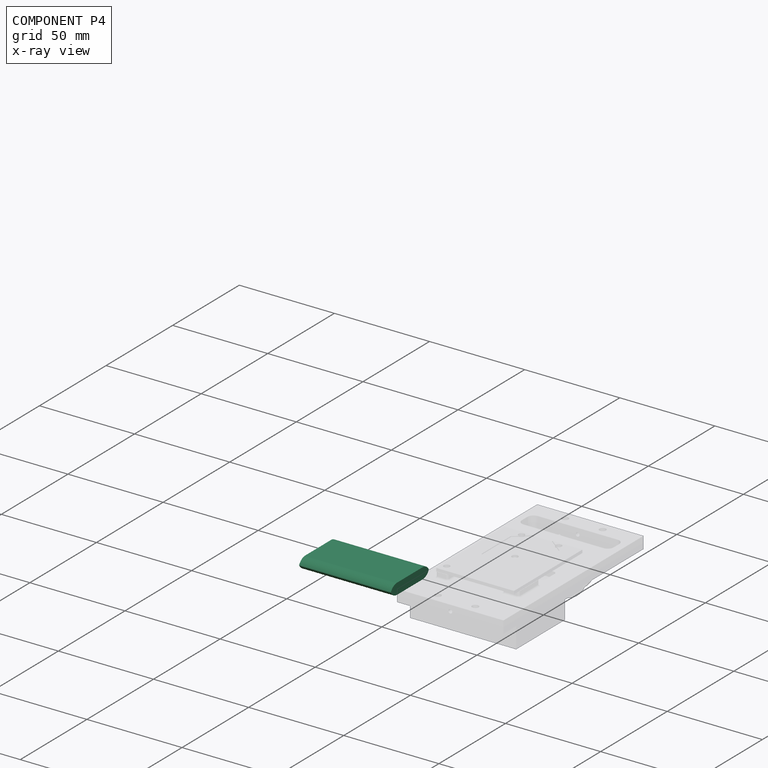
[diagram: component P4 — x-ray view]
COMPONENT P4 — recipe-attached (CADFS 00110624, mesh-verified: the recipe's output STEP matches this component's geometry to below the mesh-comparison resolution (tessellation chordal tolerance ~0.0845 mm)).
Held by: no mates (free).
Construction recipe (FeatureScript — the CAD program that rebuilds this solid; sketch coordinates are in the units given by the * unit suffixes, e.g. mm):

FeatureScript 1511;
import(path : "onshape/std/geometry.fs", version : "1511.0");
import(path : "onshape/std/common.fs", version : "1511.0");
const mm = millimeter;
const VERTEX = EntityType.VERTEX;
const EDGE = EntityType.EDGE;
const FACE = EntityType.FACE;
const BODY = EntityType.BODY;
function v(x, y){return vector(x, y);}
function OD(order){return orderDisambiguation(order);}
function OSD(set){return originalSetDisambiguation(set);}
function TD(topology){return topologyDisambiguation(topology);}
function TDD(query){return trueDependencyDisambiguation(query);}
function sQuery(a, b, c) {return sketchEntityQuery(a, b, c);}

annotation { "Feature Type Name" : "Feature", "Feature Type Description" : "" }
export const myFeature = defineFeature(function(context is Context, id is Id, definition is map)
    precondition{}
    {
        {
            var Q0;
            Q0=qCreatedBy(makeId("Top.planeOp"),FACE);
            var sketch = newSketch(context, id + "F0", { "sketchPlane" : qUnion([Q0])});
            skLineSegment(sketch, "E0.rect.bottom", {"start": v(14.73, 24.13) * mm, "end": v(-14.73, 24.13) * mm});
            skLineSegment(sketch, "E0.rect.top", {"start": v(14.73, -24.13) * mm, "end": v(-14.73, -24.13) * mm});
            skLineSegment(sketch, "E0.rect.left", {"start": v(14.73, 24.13) * mm, "end": v(14.73, -24.13) * mm});
            skLineSegment(sketch, "E0.rect.right", {"start": v(-14.73, 24.13) * mm, "end": v(-14.73, -24.13) * mm});
            skPoint(sketch, "E0.rect.middle", {"position": v(0, 0) * mm});
            skSolve(sketch);
        }
        {
            var Q0;
            Q0=qSketchRegion(id+"F0",true);
            extrude(context, id + "F1", {"entities" : qUnion([Q0]), "depth" : 5.84 * mm});
        }
        {
            var Q0;
            Q0=makeQuery(id+"F1.opExtrude","CAP_EDGE",EDGE,{"disambiguationData":[OSD([sQuery(id+"F0.wireOp",EDGE,"E0.rect.right")])],"isStart":false});
            var Q1;
            Q1=makeQuery(id+"F1.opExtrude","CAP_EDGE",EDGE,{"disambiguationData":[OSD([sQuery(id+"F0.wireOp",EDGE,"E0.rect.left")])],"isStart":false});
            var Q2;
            Q2=makeQuery(id+"F1.opExtrude","CAP_EDGE",EDGE,{"disambiguationData":[OSD([sQuery(id+"F0.wireOp",EDGE,"E0.rect.left")])],"isStart":true});
            var Q3;
            Q3=makeQuery(id+"F1.opExtrude","CAP_EDGE",EDGE,{"disambiguationData":[OSD([sQuery(id+"F0.wireOp",EDGE,"E0.rect.right")])],"isStart":true});
            fillet(context, id + "F2", {"entities" : qUnion([Q0, Q1, Q2, Q3]), "radius" : 5.08 * mm, "tangentPropagation" : true, "allowEdgeOverflow" : false});
        }
    });
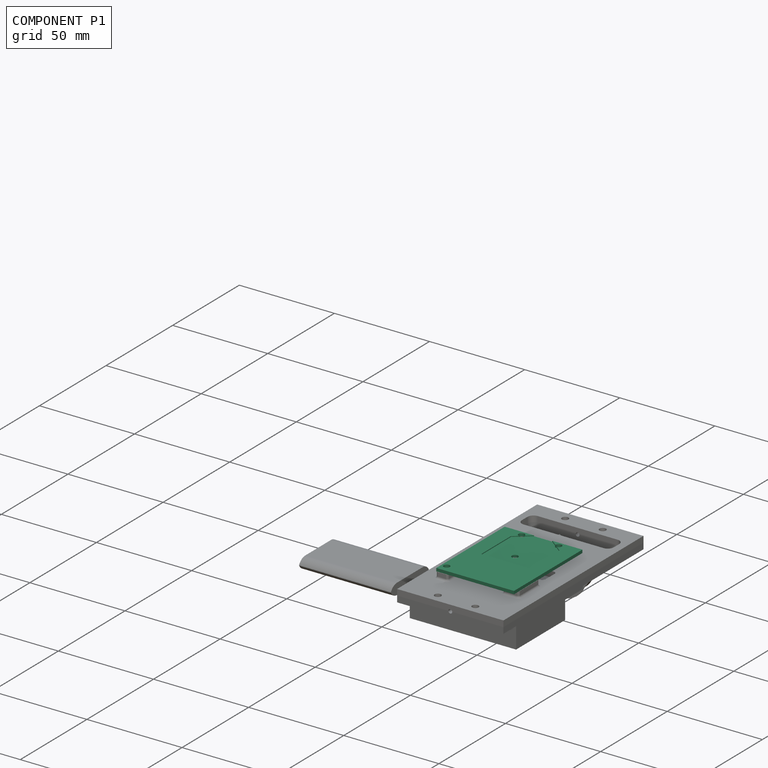
[diagram: component P1 — assembled]
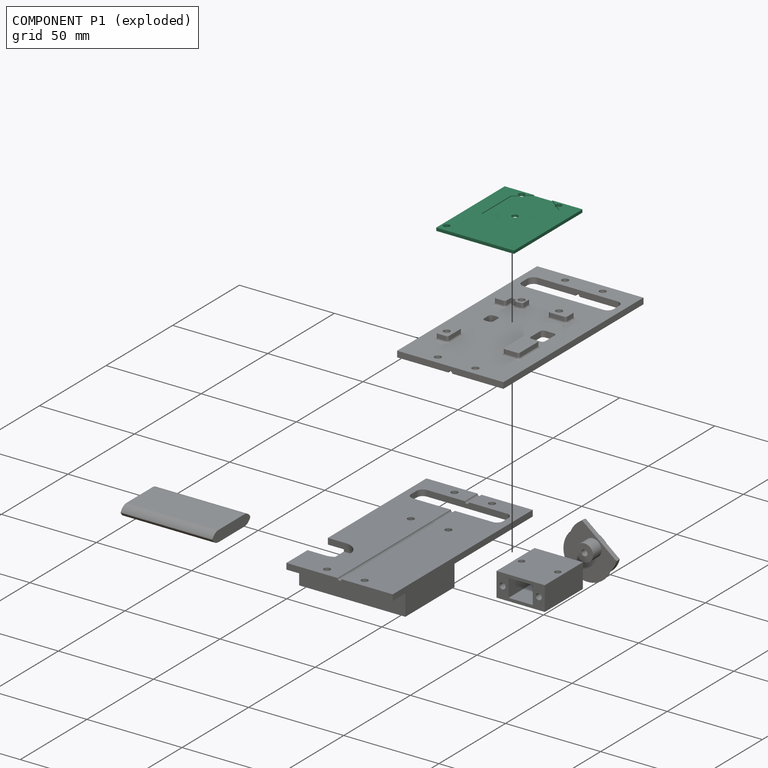
[diagram: component P1 — exploded]
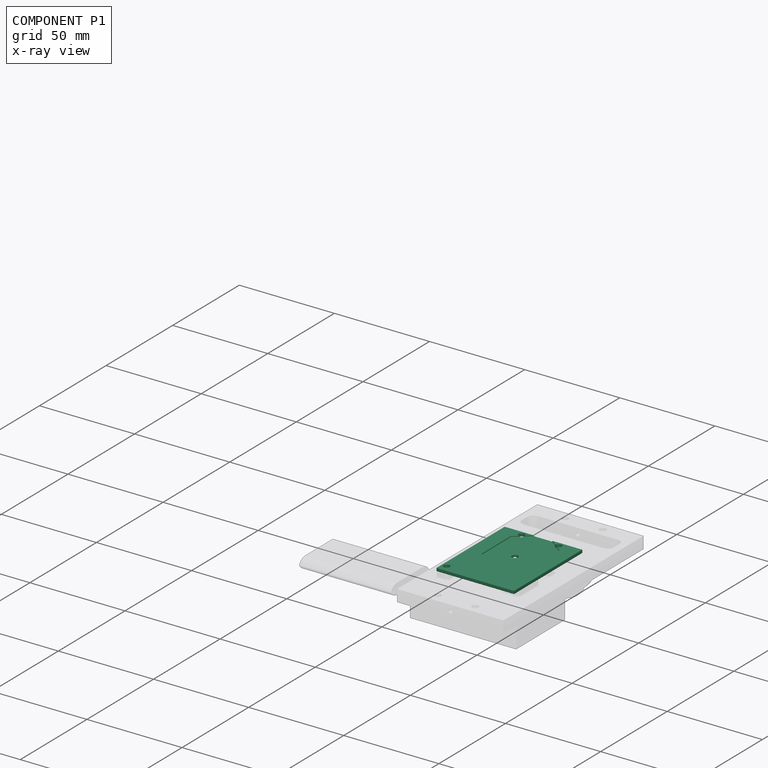
[diagram: component P1 — x-ray view]
COMPONENT P1 — recipe-attached (CADFS 00110619, mesh-verified: the recipe's output STEP matches this component's geometry to below the mesh-comparison resolution (tessellation chordal tolerance ~0.0985 mm)).
Held by: CYLINDRICAL mate "Cylindrical 5" to P0.
Construction recipe (FeatureScript — the CAD program that rebuilds this solid; sketch coordinates are in the units given by the * unit suffixes, e.g. mm):

FeatureScript 1511;
import(path : "onshape/std/geometry.fs", version : "1511.0");
import(path : "onshape/std/common.fs", version : "1511.0");
const mm = millimeter;
const VERTEX = EntityType.VERTEX;
const EDGE = EntityType.EDGE;
const FACE = EntityType.FACE;
const BODY = EntityType.BODY;
function v(x, y){return vector(x, y);}
function OD(order){return orderDisambiguation(order);}
function OSD(set){return originalSetDisambiguation(set);}
function TD(topology){return topologyDisambiguation(topology);}
function TDD(query){return trueDependencyDisambiguation(query);}
function sQuery(a, b, c) {return sketchEntityQuery(a, b, c);}

annotation { "Feature Type Name" : "Feature", "Feature Type Description" : "" }
export const myFeature = defineFeature(function(context is Context, id is Id, definition is map)
    precondition{}
    {
        {
            var Q0;
            Q0=qCreatedBy(makeId("Top.planeOp"),FACE);
            var sketch = newSketch(context, id + "F0", { "sketchPlane" : qUnion([Q0])});
            skLineSegment(sketch, "E0.rect.bottom", {"start": v(20.42, 25.68) * mm, "end": v(-20.42, 25.68) * mm});
            skLineSegment(sketch, "E0.rect.top", {"start": v(20.42, -25.68) * mm, "end": v(-20.42, -25.68) * mm});
            skLineSegment(sketch, "E0.rect.left", {"start": v(20.42, 25.68) * mm, "end": v(20.42, -25.68) * mm});
            skLineSegment(sketch, "E0.rect.right", {"start": v(-20.42, 25.68) * mm, "end": v(-20.42, -25.68) * mm});
            skPoint(sketch, "E0.rect.middle", {"position": v(0, 0) * mm});
            skCircle(sketch, "E1", {"center": v(-9.74, 23.08) * mm, "radius": 1.59 * mm});
            skCircle(sketch, "E2", {"center": v(9.74, 23.08) * mm, "radius": 1.59 * mm});
            skCircle(sketch, "E3", {"center": v(0.11, 4.05) * mm, "radius": 1.59 * mm});
            skCircle(sketch, "E4", {"center": v(-17.82, -21.55) * mm, "radius": 1.59 * mm});
            skPoint(sketch, "E5", {"position": v(0, 18.71) * mm});
            skLineSegment(sketch, "E6", {"start": v(-9.74, 23.08) * mm, "end": v(9.74, 23.08) * mm, "construction": true});
            skPoint(sketch, "E7", {"position": v(0, 23.08) * mm});
            skSolve(sketch);
        }
        {
            var Q0;
            Q0=qSketchRegion(id+"F0",true);
            extrude(context, id + "F1", {"entities" : qUnion([Q0]), "depth" : 1.59 * mm});
        }
        {
            var Q0;
            Q0=makeQuery(id+"F1.opExtrude","CAP_FACE",FACE,{"disambiguationData":[OSD([sQuery(id+"F0.wireOp",EDGE,"E0.rect.bottom"),sQuery(id+"F0.wireOp",EDGE,"E0.rect.top"),sQuery(id+"F0.wireOp",EDGE,"E0.rect.left"),sQuery(id+"F0.wireOp",EDGE,"E0.rect.right"),sQuery(id+"F0.wireOp",EDGE,"E1"),sQuery(id+"F0.wireOp",EDGE,"E2"),sQuery(id+"F0.wireOp",EDGE,"E3"),sQuery(id+"F0.wireOp",EDGE,"E4")])],"isStart":false});
            var sketch = newSketch(context, id + "F2", { "sketchPlane" : qUnion([Q0])});
            skLineSegment(sketch, "E8", {"start": v(-4.98, 25.68) * mm, "end": v(4.55, 25.68) * mm});
            skLineSegment(sketch, "E9", {"start": v(4.55, 25.68) * mm, "end": v(12.7, 19.33) * mm});
            skLineSegment(sketch, "E10", {"start": v(12.7, 19.33) * mm, "end": v(12.7, -2.9) * mm});
            skLineSegment(sketch, "E11", {"start": v(12.7, -2.9) * mm, "end": v(-12.7, -2.9) * mm});
            skLineSegment(sketch, "E12", {"start": v(-12.7, -2.9) * mm, "end": v(-12.7, 19.33) * mm});
            skLineSegment(sketch, "E13", {"start": v(-12.7, 19.33) * mm, "end": v(-4.98, 25.68) * mm});
            skLineSegment(sketch, "E14", {"start": v(-12.7, 19.33) * mm, "end": v(12.7, 19.33) * mm, "construction": true});
            skPoint(sketch, "E15", {"position": v(0, 19.33) * mm});
            skSolve(sketch);
        }
        {
            var Q0;
            Q0=qSketchRegion(id+"F2",true);
            extrude(context, id + "F3", {"entities" : qUnion([Q0]), "operationType" : NewBodyOperationType.REMOVE, "oppositeDirection" : true, "depth" : 0.4 * mm});
        }
    });
PROVENANCE & LICENSES
Assembly (occurrences, transforms, mates, per-part STEP geometry): AutoMate dataset, Zenodo record 7776208, CC0.
Construction recipes: CADFS (HuggingFace VladPyatov/CADFS, CC-BY-4.0, layered over the ABC dataset), FeatureScript reconstruction programs keyed by ABC model id.
Join: ABC meta listings map ABC model id -> Onshape documentId; within a shared document, parts are matched by geometric signature (bounding-box dims + volume at 0.1% relative tolerance, exact B-rep face/solid counts).
Verification: 5 of this assembly's 6 components carry a recipe attachment, and every attachment is mesh-verified: the CADFS STEP and the AutoMate member STEP were compared as meshes in their shared local frame (symmetric sampled-point-to-mesh distance); worst across the 5 attachments: below the mesh-comparison resolution (tessellation chordal tolerance ~0.18 mm) on a 120 mm part.
Renders: orthographic iso camera (az 35 / el 25); the floor grid conveys scale (grid pitch printed in each image; no ruler). In the exploded view each component is displaced by its stored offset vector: the offsets alone carry the explosion direction (mate normal/axis signs are not orientation cues and do not encode it), and separation distances are assigned per mate-chain, not proportionally to assembly-order depth.
